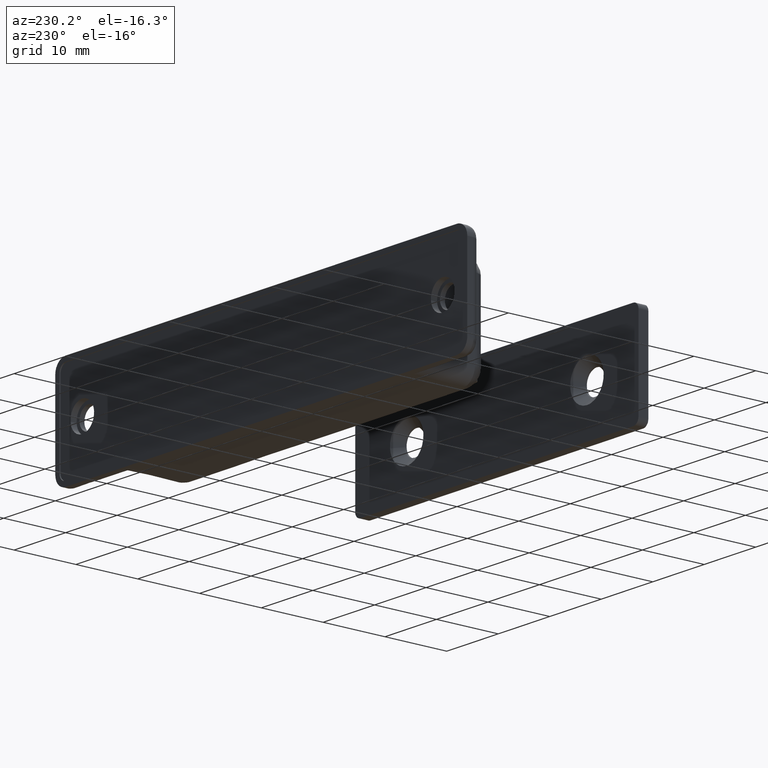
[diagram: clean part render]
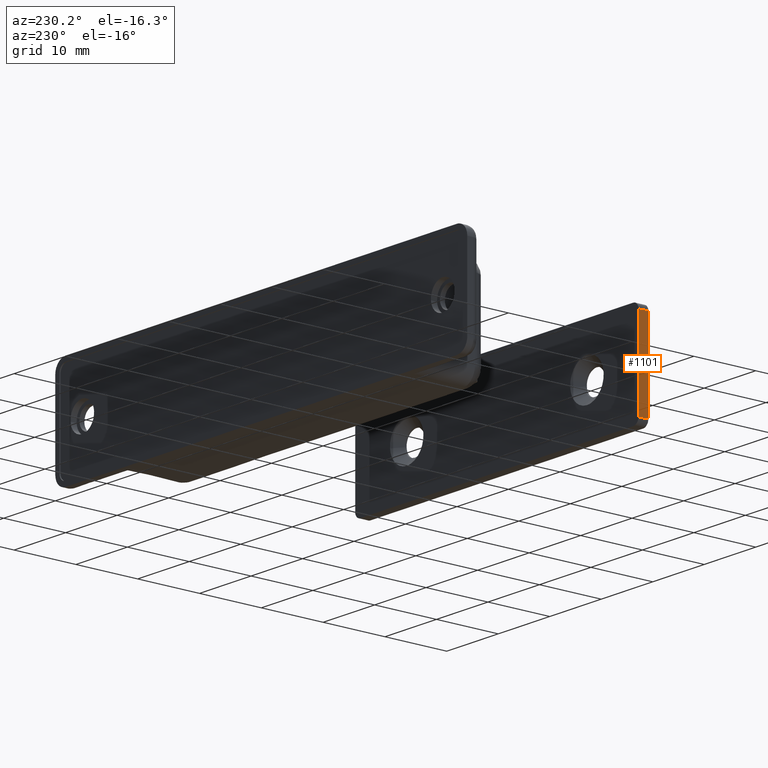
[diagram: same view with one face highlighted and labeled with its STEP entity id]
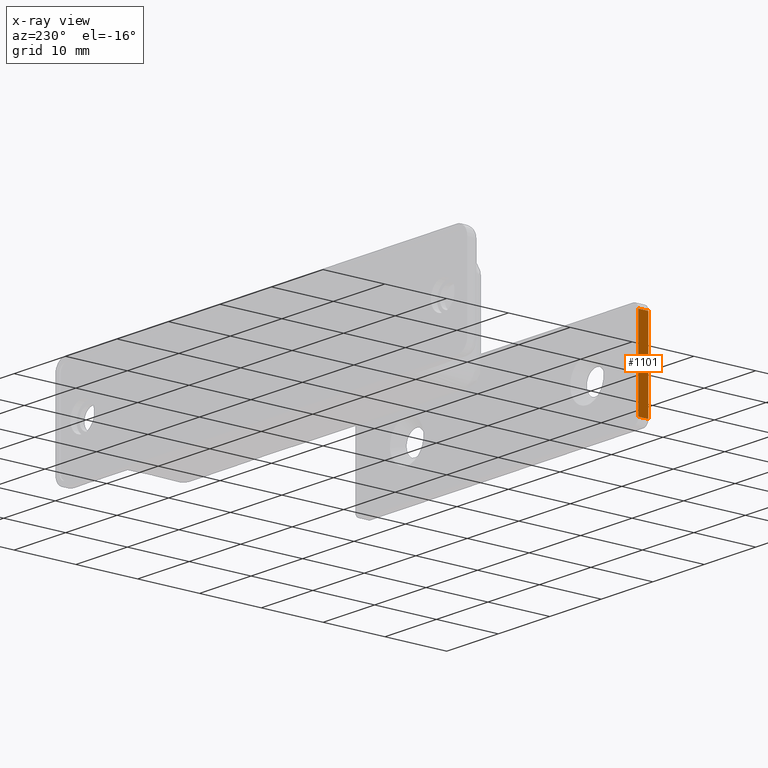
[diagram: x-ray of the same camera — body ghosted, the highlighted face saturated]
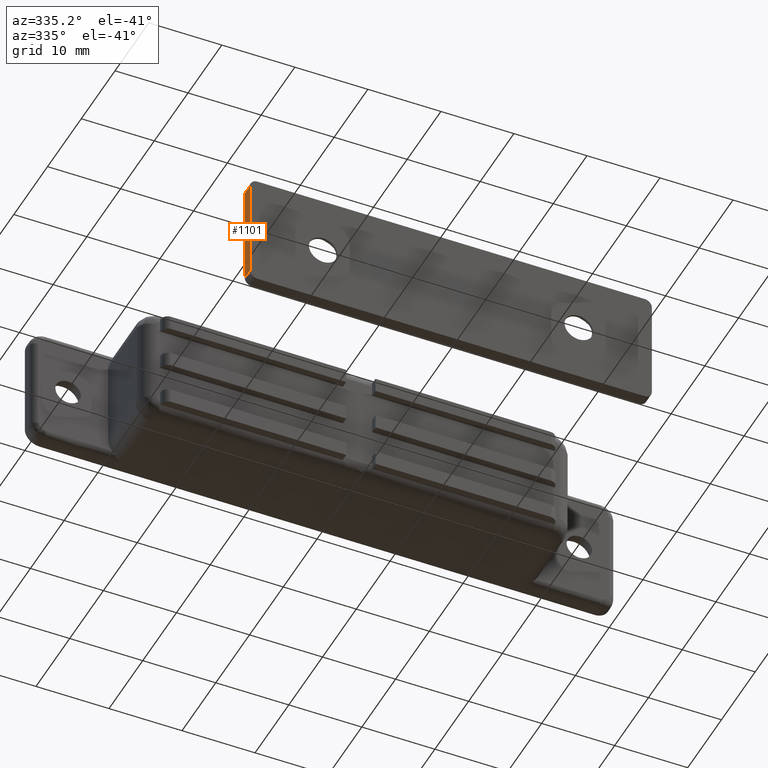
[diagram: same view with one face highlighted and labeled with its STEP entity id]
A machine part, auxiliary view. The second image highlights one B-rep face of the part: STEP entity #1101.
The next image is the same camera in x-ray: the body ghosted, the highlighted face saturated — about 0% of this face is hidden behind the body in this view.
A second angle (auxiliary view) of the same face is appended — the face is thin or edge-on in the first view.
In plain terms, the highlighted face is a freeform B-spline surface patch.
Its self-contained STEP definition (entity closure, byte-faithful):
#1035=CARTESIAN_POINT('',(-27.500000000000000,-14.710361412662120,7.0));
#1036=VERTEX_POINT('',#1035);
#1051=CARTESIAN_POINT('',(-27.500000000000000,-13.110361412662099,7.0));
#1052=VERTEX_POINT('',#1051);
#1066=CARTESIAN_POINT('',(-27.500000000000000,-13.110361412662099,7.0));
#1067=CARTESIAN_POINT('',(-27.500000000000000,-14.710361412662120,7.0));
#1068=QUASI_UNIFORM_CURVE('',1,(#1066,#1067),.UNSPECIFIED.,.F.,.U.);
#1069=EDGE_CURVE('',#1052,#1036,#1068,.T.);
#1074=CARTESIAN_POINT('',(-27.500000000000000,-14.790281496091939,7.699299965019157));
#1075=CARTESIAN_POINT('',(-27.500000000000000,-14.790281496091939,-7.699300183448784));
#1076=CARTESIAN_POINT('',(-27.500000000000000,-13.030441128960680,7.699299965019157));
#1077=CARTESIAN_POINT('',(-27.500000000000000,-13.030441128960680,-7.699300183448784));
#1078=B_SPLINE_SURFACE_WITH_KNOTS('',1,1,((#1074,#1076),(#1075,#1077)),.UNSPECIFIED.,.F.,.F.,.U.,(2,2),(2,2),(0.0,15.398600148467940),(0.041708289880306,0.958291814427823),.UNSPECIFIED.);
#1079=CARTESIAN_POINT('',(-27.500000000000000,-14.710361412662120,-6.999999842920370));
#1080=VERTEX_POINT('',#1079);
#1081=CARTESIAN_POINT('',(-27.500000000000000,-14.710361412662120,-6.999999842920370));
#1082=CARTESIAN_POINT('',(-27.500000000000000,-14.710361412662120,7.0));
#1083=QUASI_UNIFORM_CURVE('',1,(#1081,#1082),.UNSPECIFIED.,.F.,.U.);
#1084=EDGE_CURVE('',#1080,#1036,#1083,.T.);
#1085=ORIENTED_EDGE('',*,*,#1084,.T.);
#1086=ORIENTED_EDGE('',*,*,#1069,.F.);
#1087=CARTESIAN_POINT('',(-27.500000000000000,-13.110361412662099,-6.999999842920370));
#1088=VERTEX_POINT('',#1087);
#1089=CARTESIAN_POINT('',(-27.500000000000000,-13.110361412662099,-6.999999842920370));
#1090=CARTESIAN_POINT('',(-27.500000000000000,-13.110361412662099,7.0));
#1091=QUASI_UNIFORM_CURVE('',1,(#1089,#1090),.UNSPECIFIED.,.F.,.U.);
#1092=EDGE_CURVE('',#1088,#1052,#1091,.T.);
#1093=ORIENTED_EDGE('',*,*,#1092,.F.);
#1094=CARTESIAN_POINT('',(-27.500000000000000,-13.110361412662099,-6.999999842920370));
#1095=CARTESIAN_POINT('',(-27.500000000000000,-14.710361412662120,-6.999999842920370));
#1096=QUASI_UNIFORM_CURVE('',1,(#1094,#1095),.UNSPECIFIED.,.F.,.U.);
#1097=EDGE_CURVE('',#1088,#1080,#1096,.T.);
#1098=ORIENTED_EDGE('',*,*,#1097,.T.);
#1099=EDGE_LOOP('',(#1085,#1086,#1093,#1098));
#1100=FACE_OUTER_BOUND('',#1099,.T.);
#1101=ADVANCED_FACE('',(#1100),#1078,.F.);